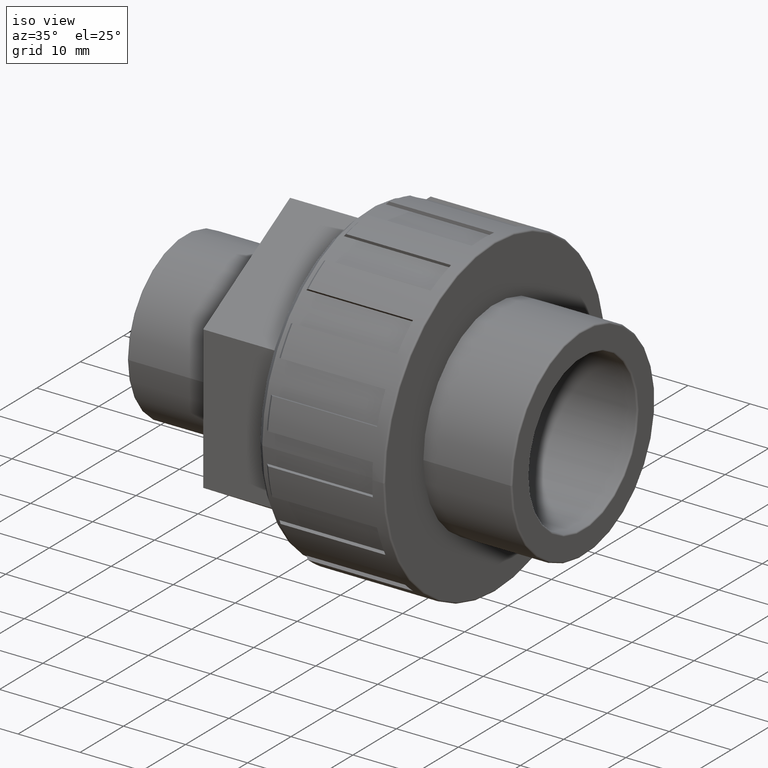
[diagram: clean part render]
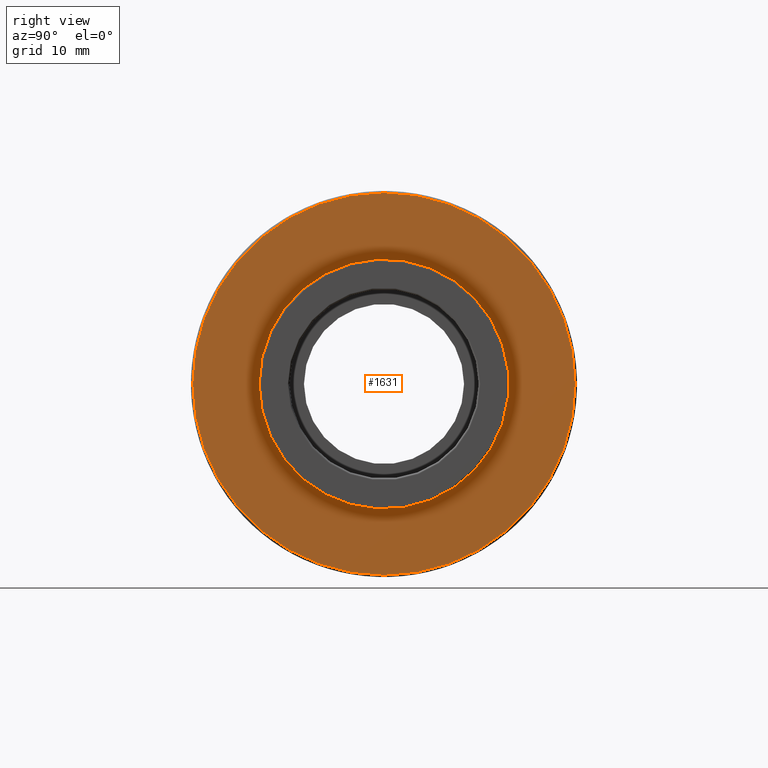
[diagram: tour spotlight — one face highlighted and labeled with its STEP entity id]
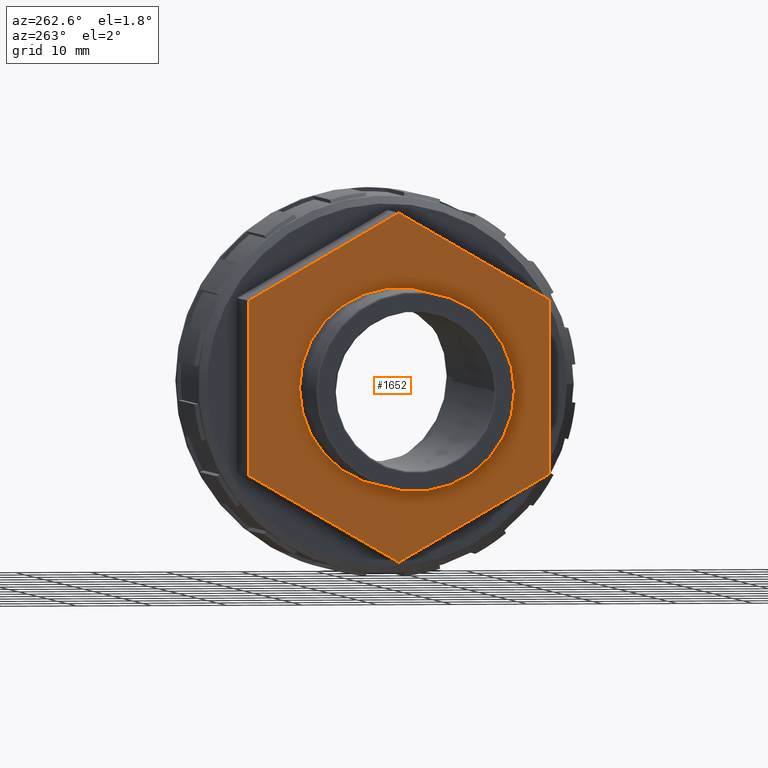
[diagram: tour spotlight — one face highlighted and labeled with its STEP entity id]
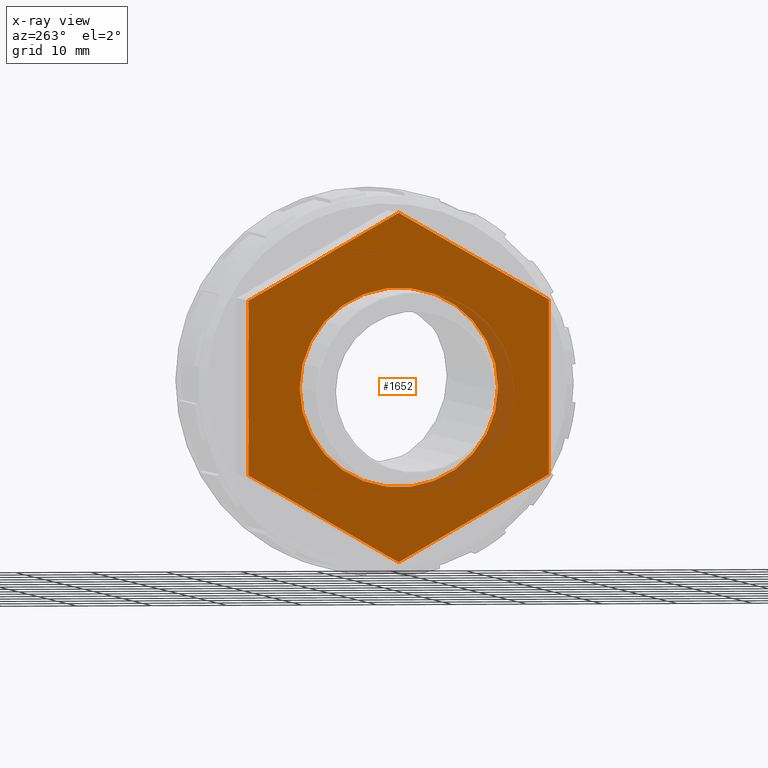
[diagram: x-ray of the same camera — body ghosted, this tour face saturated]
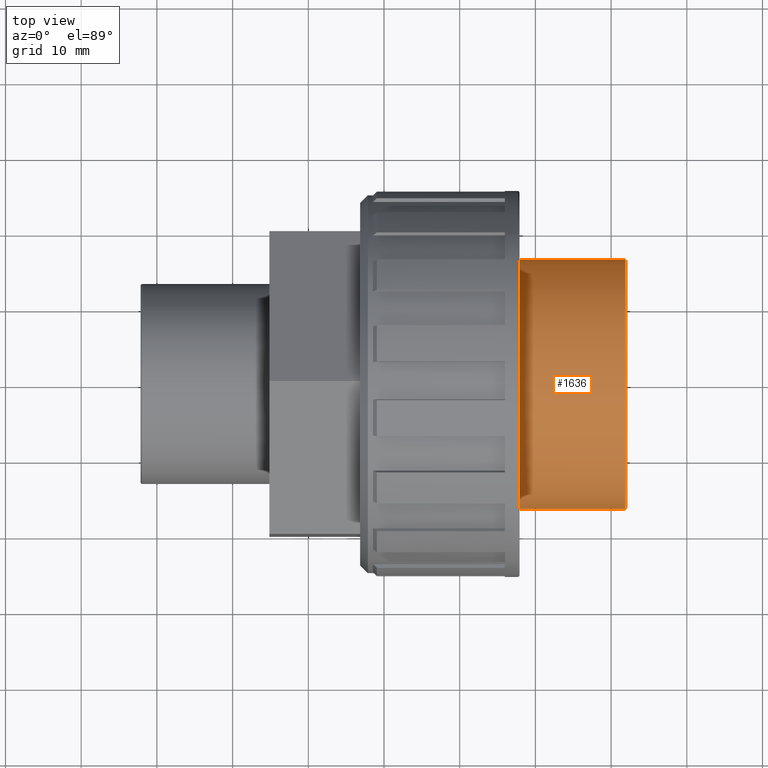
[diagram: tour spotlight — one face highlighted and labeled with its STEP entity id]
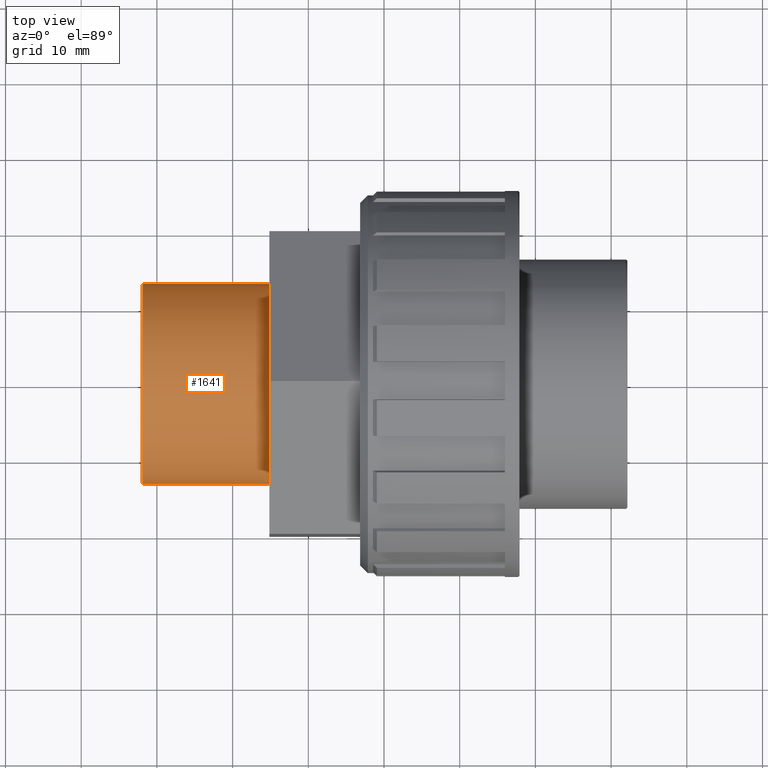
[diagram: tour spotlight — one face highlighted and labeled with its STEP entity id]
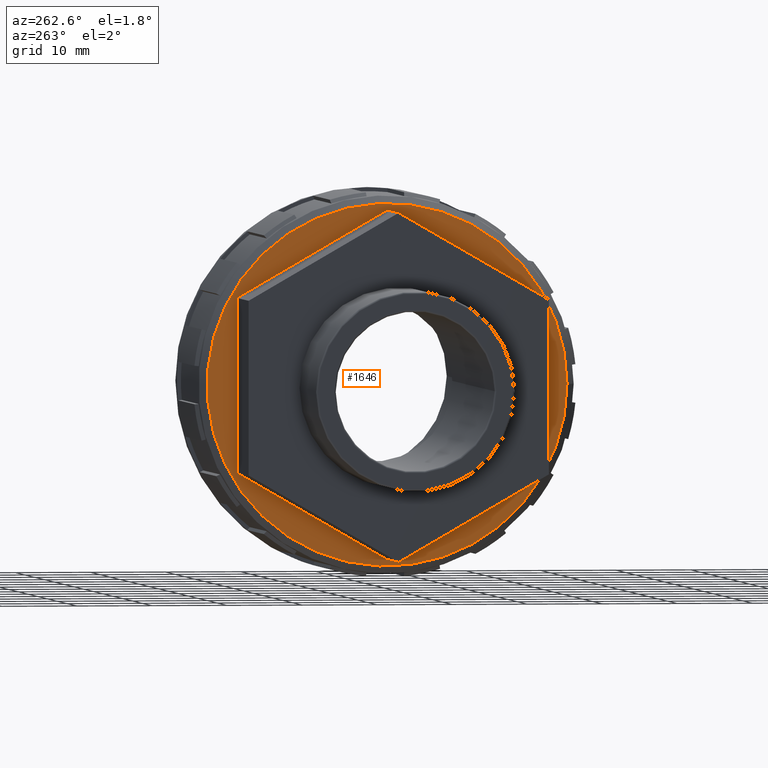
[diagram: tour spotlight — one face highlighted and labeled with its STEP entity id]
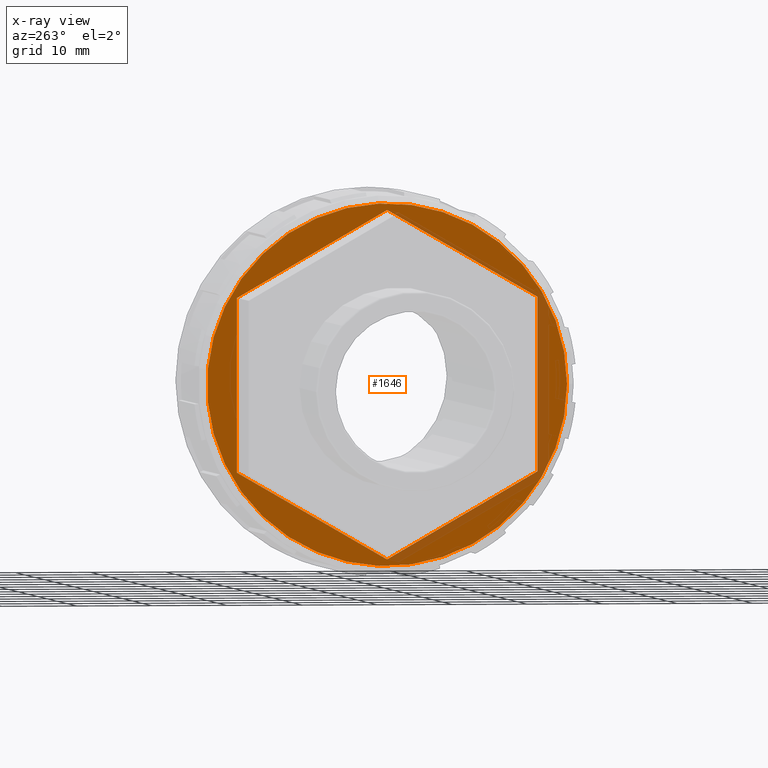
[diagram: x-ray of the same camera — body ghosted, this tour face saturated]
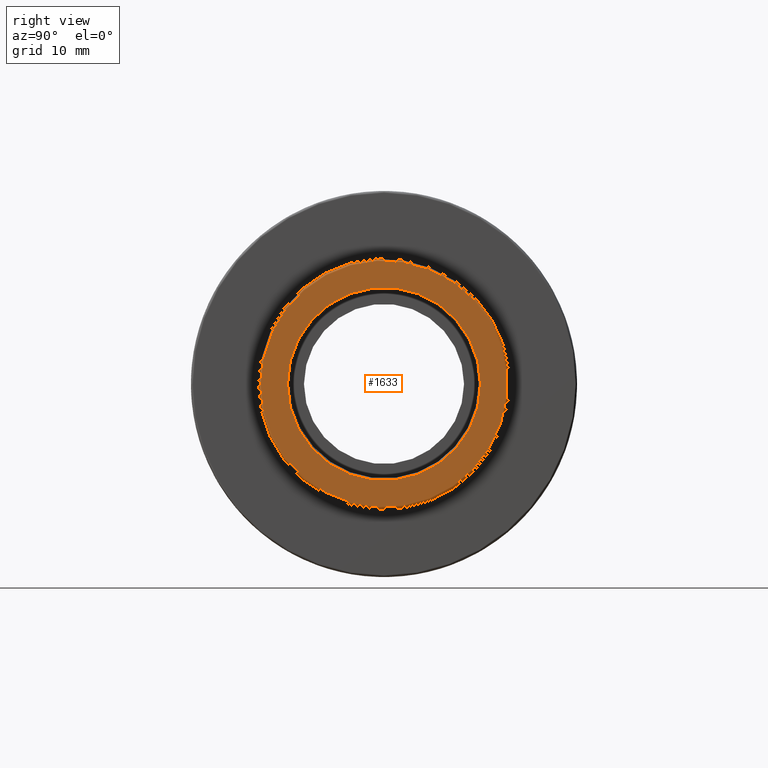
[diagram: tour spotlight — one face highlighted and labeled with its STEP entity id]
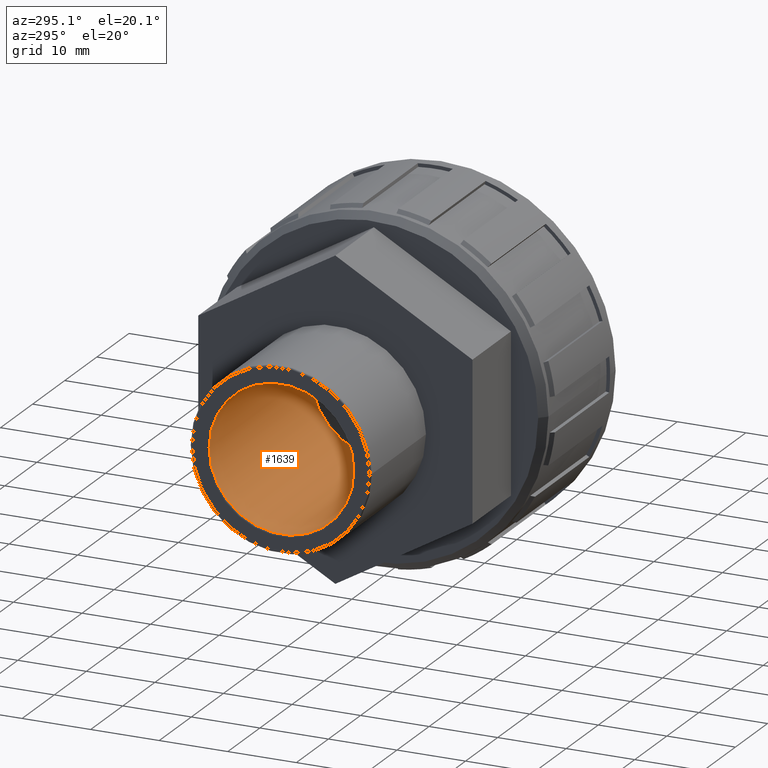
[diagram: tour spotlight — one face highlighted and labeled with its STEP entity id]
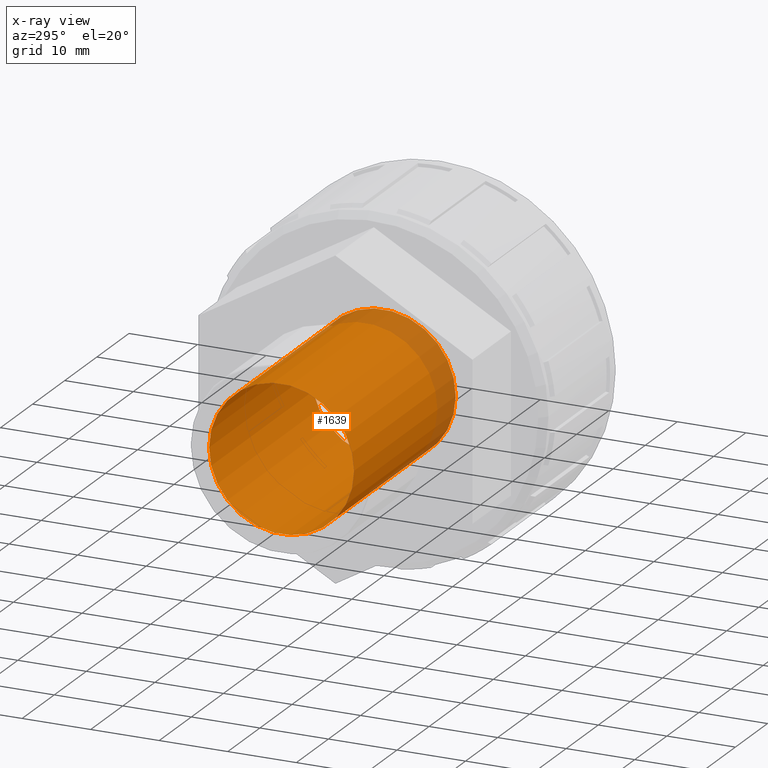
[diagram: x-ray of the same camera — body ghosted, this tour face saturated]
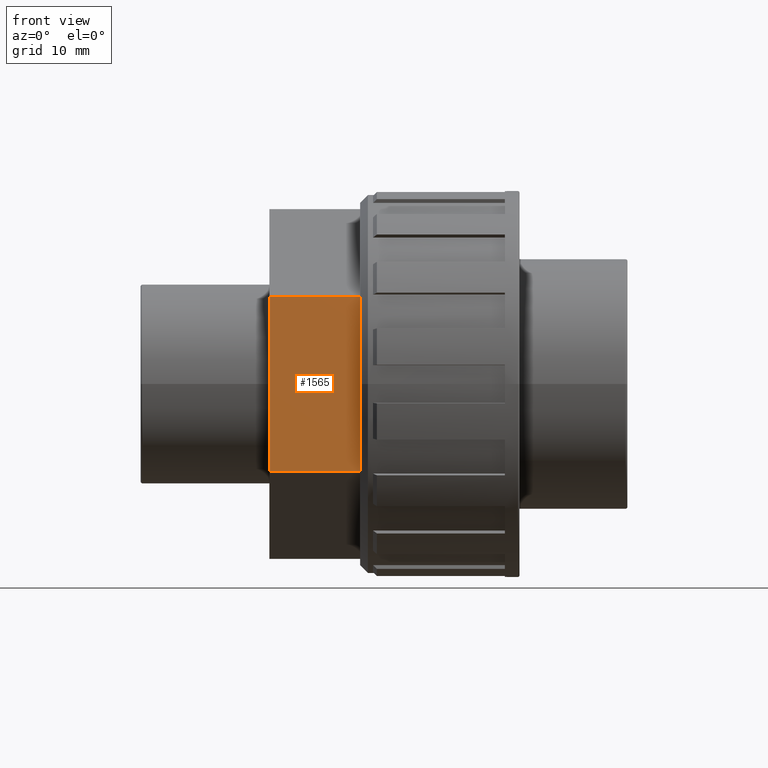
[diagram: tour spotlight — one face highlighted and labeled with its STEP entity id]
A machine part: a face-by-face anatomy tour. The part has 92 B-rep faces; the first image is the clean iso view, then the 8 largest visible faces are spotlighted one at a time (largest first), each with its STEP entity span.

Face 1 — right view, entity #1631. In plain terms, the highlighted planar face has unit normal (1, 0, 0).
Definition (entity closure, byte-faithful):
#39=FACE_BOUND('',#316,.T.);
#131=CIRCLE('',#1789,25.25);
#132=CIRCLE('',#1791,16.5);
#221=FACE_OUTER_BOUND('',#315,.T.);
#315=EDGE_LOOP('',(#1378));
#316=EDGE_LOOP('',(#1379));
#789=VERTEX_POINT('',#2750);
#790=VERTEX_POINT('',#2753);
#1017=EDGE_CURVE('',#789,#789,#131,.T.);
#1018=EDGE_CURVE('',#790,#790,#132,.T.);
#1378=ORIENTED_EDGE('',*,*,#1017,.F.);
#1379=ORIENTED_EDGE('',*,*,#1018,.T.);
#1551=PLANE('',#1790);
#1631=ADVANCED_FACE('',(#221,#39),#1551,.T.);
#1789=AXIS2_PLACEMENT_3D('',#2751,#2245,#2246);
#1790=AXIS2_PLACEMENT_3D('',#2752,#2247,#2248);
#1791=AXIS2_PLACEMENT_3D('',#2754,#2249,#2250);
#2245=DIRECTION('center_axis',(-1.,-4.89858719658941E-16,0.));
#2246=DIRECTION('ref_axis',(-4.89858719658941E-16,1.,6.12323399573677E-17));
#2247=DIRECTION('center_axis',(1.,4.89858719658941E-16,0.));
#2248=DIRECTION('ref_axis',(0.,0.,-1.));
#2249=DIRECTION('center_axis',(-1.,-4.89858719658941E-16,0.));
#2250=DIRECTION('ref_axis',(0.,0.,1.));
#2750=CARTESIAN_POINT('',(17.9,-25.25,1.54611658392353E-15));
#2751=CARTESIAN_POINT('Origin',(17.9,1.46743302707831E-14,0.));
#2752=CARTESIAN_POINT('Origin',(17.9,-25.5,0.));
#2753=CARTESIAN_POINT('',(17.9,-16.5,0.));
#2754=CARTESIAN_POINT('Origin',(17.9,1.46743302707831E-14,0.));

Face 2 — auxiliary view, entity #1652. An x-ray twin of the same camera follows (body ghosted, this face saturated) — the face is partly hidden behind the body. In plain terms, the highlighted planar face has unit normal (-1, -0, 0).
Definition (entity closure, byte-faithful):
#58=FACE_BOUND('',#356,.T.);
#143=CIRCLE('',#1812,13.2205);
#242=FACE_OUTER_BOUND('',#355,.T.);
#355=EDGE_LOOP('',(#1492,#1493,#1494,#1495,#1496,#1497));
#356=EDGE_LOOP('',(#1498));
#359=LINE('',#2339,#505);
#363=LINE('',#2346,#509);
#366=LINE('',#2354,#512);
#370=LINE('',#2361,#516);
#372=LINE('',#2364,#518);
#374=LINE('',#2367,#520);
#505=VECTOR('',#1837,23.0940107675851);
#509=VECTOR('',#1843,23.0940107675851);
#512=VECTOR('',#1848,23.094010767585);
#516=VECTOR('',#1854,23.094010767585);
#518=VECTOR('',#1858,23.094010767585);
#520=VECTOR('',#1862,23.094010767585);
#651=VERTEX_POINT('',#2336);
#652=VERTEX_POINT('',#2338);
#654=VERTEX_POINT('',#2344);
#657=VERTEX_POINT('',#2351);
#658=VERTEX_POINT('',#2353);
#660=VERTEX_POINT('',#2359);
#801=VERTEX_POINT('',#2785);
#811=EDGE_CURVE('',#651,#652,#359,.T.);
#815=EDGE_CURVE('',#654,#651,#363,.T.);
#818=EDGE_CURVE('',#657,#658,#366,.T.);
#822=EDGE_CURVE('',#660,#657,#370,.T.);
#824=EDGE_CURVE('',#652,#660,#372,.T.);
#826=EDGE_CURVE('',#658,#654,#374,.T.);
#1029=EDGE_CURVE('',#801,#801,#143,.T.);
#1492=ORIENTED_EDGE('',*,*,#811,.F.);
#1493=ORIENTED_EDGE('',*,*,#815,.F.);
#1494=ORIENTED_EDGE('',*,*,#826,.F.);
#1495=ORIENTED_EDGE('',*,*,#818,.F.);
#1496=ORIENTED_EDGE('',*,*,#822,.F.);
#1497=ORIENTED_EDGE('',*,*,#824,.F.);
#1498=ORIENTED_EDGE('',*,*,#1029,.F.);
#1560=PLANE('',#1830);
#1652=ADVANCED_FACE('',(#242,#58),#1560,.T.);
#1812=AXIS2_PLACEMENT_3D('',#2786,#2291,#2292);
#1830=AXIS2_PLACEMENT_3D('',#2813,#2329,#2330);
#1837=DIRECTION('',(4.24230095489962E-16,-0.866025403784439,-0.5));
#1843=DIRECTION('',(4.24230095489962E-16,-0.866025403784438,0.5));
#1848=DIRECTION('',(-4.24230095489962E-16,0.866025403784439,0.5));
#1854=DIRECTION('',(-4.24230095489962E-16,0.866025403784439,-0.5));
#1858=DIRECTION('',(9.4198003950377E-32,-1.92296268638356E-16,-1.));
#1862=DIRECTION('',(-1.88396007900754E-31,3.84592537276713E-16,1.));
#2291=DIRECTION('center_axis',(-1.,-4.89858719658941E-16,0.));
#2292=DIRECTION('ref_axis',(0.,0.,1.));
#2329=DIRECTION('center_axis',(-1.,-4.89858719658941E-16,0.));
#2330=DIRECTION('ref_axis',(0.,0.,1.));
#2336=CARTESIAN_POINT('',(-15.15,-6.14276885302824E-14,23.0940107675851));
#2338=CARTESIAN_POINT('',(-15.15,-20.0000000000001,11.5470053837925));
#2339=CARTESIAN_POINT('',(-15.15,-6.14276885302824E-14,23.0940107675851));
#2344=CARTESIAN_POINT('',(-15.15,20.,11.5470053837925));
#2346=CARTESIAN_POINT('',(-15.15,20.,11.5470053837925));
#2351=CARTESIAN_POINT('',(-15.15,-6.80998962816936E-14,-23.094010767585));
#2353=CARTESIAN_POINT('',(-15.15,19.9999999999999,-11.5470053837925));
#2354=CARTESIAN_POINT('',(-15.15,-6.80998962816936E-14,-23.094010767585));
#2359=CARTESIAN_POINT('',(-15.15,-20.0000000000001,-11.5470053837925));
#2361=CARTESIAN_POINT('',(-15.15,-20.0000000000001,-11.5470053837925));
#2364=CARTESIAN_POINT('',(-15.15,-20.0000000000001,11.5470053837925));
#2367=CARTESIAN_POINT('',(-15.15,19.9999999999999,-11.5470053837925));
#2785=CARTESIAN_POINT('',(-15.15,-13.2205,0.));
#2786=CARTESIAN_POINT('Origin',(-15.15,-1.51550041394485E-15,0.));
#2813=CARTESIAN_POINT('Origin',(-15.15,-13.2205,0.));

Face 3 — top view, entity #1636. In plain terms, the highlighted cylindrical surface (bore or boss wall) has radius 16.5 mm, axis along (-1, -0, 0).
Definition (entity closure, byte-faithful):
#44=FACE_BOUND('',#326,.T.);
#61=CYLINDRICAL_SURFACE('',#1801,16.5);
#132=CIRCLE('',#1791,16.5);
#137=CIRCLE('',#1800,16.5);
#226=FACE_OUTER_BOUND('',#325,.T.);
#325=EDGE_LOOP('',(#1388));
#326=EDGE_LOOP('',(#1389));
#790=VERTEX_POINT('',#2753);
#795=VERTEX_POINT('',#2767);
#1018=EDGE_CURVE('',#790,#790,#132,.T.);
#1023=EDGE_CURVE('',#795,#795,#137,.T.);
#1388=ORIENTED_EDGE('',*,*,#1018,.F.);
#1389=ORIENTED_EDGE('',*,*,#1023,.F.);
#1636=ADVANCED_FACE('',(#226,#44),#61,.T.);
#1791=AXIS2_PLACEMENT_3D('',#2754,#2249,#2250);
#1800=AXIS2_PLACEMENT_3D('',#2768,#2267,#2268);
#1801=AXIS2_PLACEMENT_3D('',#2769,#2269,#2270);
#2249=DIRECTION('center_axis',(-1.,-4.89858719658941E-16,0.));
#2250=DIRECTION('ref_axis',(0.,0.,1.));
#2267=DIRECTION('center_axis',(1.,4.89858719658941E-16,0.));
#2268=DIRECTION('ref_axis',(-4.89927963518297E-16,1.,6.12323399573677E-17));
#2269=DIRECTION('center_axis',(-1.,-4.89858719658941E-16,0.));
#2270=DIRECTION('ref_axis',(5.03864312828633E-16,-1.,0.));
#2753=CARTESIAN_POINT('',(17.9,-16.5,0.));
#2754=CARTESIAN_POINT('Origin',(17.9,1.46743302707831E-14,0.));
#2767=CARTESIAN_POINT('',(31.9,-16.5,-3.0310008278897E-15));
#2768=CARTESIAN_POINT('Origin',(31.9,2.15323523460083E-14,0.));
#2769=CARTESIAN_POINT('Origin',(25.025,1.81645736483531E-14,0.));

Face 4 — top view, entity #1641. In plain terms, the highlighted cylindrical surface (bore or boss wall) has radius 13.2205 mm, axis along (-1, -0, 0).
Definition (entity closure, byte-faithful):
#49=FACE_BOUND('',#336,.T.);
#63=CYLINDRICAL_SURFACE('',#1811,13.2205);
#142=CIRCLE('',#1810,13.2205);
#143=CIRCLE('',#1812,13.2205);
#231=FACE_OUTER_BOUND('',#335,.T.);
#335=EDGE_LOOP('',(#1398));
#336=EDGE_LOOP('',(#1399));
#800=VERTEX_POINT('',#2782);
#801=VERTEX_POINT('',#2785);
#1028=EDGE_CURVE('',#800,#800,#142,.T.);
#1029=EDGE_CURVE('',#801,#801,#143,.T.);
#1398=ORIENTED_EDGE('',*,*,#1029,.T.);
#1399=ORIENTED_EDGE('',*,*,#1028,.F.);
#1641=ADVANCED_FACE('',(#231,#49),#63,.T.);
#1810=AXIS2_PLACEMENT_3D('',#2783,#2287,#2288);
#1811=AXIS2_PLACEMENT_3D('',#2784,#2289,#2290);
#1812=AXIS2_PLACEMENT_3D('',#2786,#2291,#2292);
#2287=DIRECTION('center_axis',(-1.,-4.89858719658941E-16,0.));
#2288=DIRECTION('ref_axis',(-4.90742846348721E-16,1.,6.12323399573676E-17));
#2289=DIRECTION('center_axis',(-1.,-4.89858719658941E-16,0.));
#2290=DIRECTION('ref_axis',(5.03864312828633E-16,-1.,0.));
#2291=DIRECTION('center_axis',(-1.,-4.89858719658941E-16,0.));
#2292=DIRECTION('ref_axis',(0.,0.,1.));
#2782=CARTESIAN_POINT('',(-31.9,-13.2205,8.09522150406379E-16));
#2783=CARTESIAN_POINT('Origin',(-31.9,-9.72063396823211E-15,0.));
#2784=CARTESIAN_POINT('Origin',(-23.65,-5.67929953104584E-15,0.));
#2785=CARTESIAN_POINT('',(-15.15,-13.2205,0.));
#2786=CARTESIAN_POINT('Origin',(-15.15,-1.51550041394485E-15,0.));

Face 5 — auxiliary view, entity #1646. An x-ray twin of the same camera follows (body ghosted, this face saturated) — the face is partly hidden behind the body. In plain terms, the highlighted planar face has unit normal (-1, -0, 0).
Definition (entity closure, byte-faithful):
#52=FACE_BOUND('',#344,.T.);
#146=CIRCLE('',#1818,23.97);
#236=FACE_OUTER_BOUND('',#343,.T.);
#343=EDGE_LOOP('',(#1475));
#344=EDGE_LOOP('',(#1476,#1477,#1478,#1479,#1480,#1481));
#357=LINE('',#2335,#503);
#361=LINE('',#2343,#507);
#364=LINE('',#2350,#510);
#368=LINE('',#2358,#514);
#371=LINE('',#2363,#517);
#373=LINE('',#2366,#519);
#503=VECTOR('',#1835,23.0940107675851);
#507=VECTOR('',#1841,23.0940107675851);
#510=VECTOR('',#1846,23.094010767585);
#514=VECTOR('',#1852,23.094010767585);
#517=VECTOR('',#1857,23.094010767585);
#519=VECTOR('',#1861,23.094010767585);
#649=VERTEX_POINT('',#2333);
#650=VERTEX_POINT('',#2334);
#653=VERTEX_POINT('',#2342);
#655=VERTEX_POINT('',#2348);
#656=VERTEX_POINT('',#2349);
#659=VERTEX_POINT('',#2357);
#804=VERTEX_POINT('',#2796);
#809=EDGE_CURVE('',#649,#650,#357,.T.);
#813=EDGE_CURVE('',#653,#649,#361,.T.);
#816=EDGE_CURVE('',#655,#656,#364,.T.);
#820=EDGE_CURVE('',#659,#655,#368,.T.);
#823=EDGE_CURVE('',#650,#659,#371,.T.);
#825=EDGE_CURVE('',#656,#653,#373,.T.);
#1034=EDGE_CURVE('',#804,#804,#146,.T.);
#1475=ORIENTED_EDGE('',*,*,#1034,.F.);
#1476=ORIENTED_EDGE('',*,*,#813,.T.);
#1477=ORIENTED_EDGE('',*,*,#809,.T.);
#1478=ORIENTED_EDGE('',*,*,#823,.T.);
#1479=ORIENTED_EDGE('',*,*,#820,.T.);
#1480=ORIENTED_EDGE('',*,*,#816,.T.);
#1481=ORIENTED_EDGE('',*,*,#825,.T.);
#1556=PLANE('',#1820);
#1646=ADVANCED_FACE('',(#236,#52),#1556,.T.);
#1818=AXIS2_PLACEMENT_3D('',#2797,#2305,#2306);
#1820=AXIS2_PLACEMENT_3D('',#2799,#2309,#2310);
#1835=DIRECTION('',(4.24230095489962E-16,-0.866025403784439,-0.5));
#1841=DIRECTION('',(4.24230095489962E-16,-0.866025403784438,0.5));
#1846=DIRECTION('',(-4.24230095489962E-16,0.866025403784439,0.5));
#1852=DIRECTION('',(-4.24230095489962E-16,0.866025403784439,-0.5));
#1857=DIRECTION('',(9.4198003950377E-32,-1.92296268638356E-16,-1.));
#1861=DIRECTION('',(-1.88396007900754E-31,3.84592537276713E-16,1.));
#2305=DIRECTION('center_axis',(1.,4.89858719658941E-16,0.));
#2306=DIRECTION('ref_axis',(-4.89858719658941E-16,1.,0.));
#2309=DIRECTION('center_axis',(-1.,-4.89858719658941E-16,0.));
#2310=DIRECTION('ref_axis',(0.,0.,1.));
#2333=CARTESIAN_POINT('',(-3.15,-5.55064990656149E-14,23.0940107675851));
#2334=CARTESIAN_POINT('',(-3.15,-20.0000000000001,11.5470053837925));
#2335=CARTESIAN_POINT('',(-3.15,-12.5,15.8771324027147));
#2342=CARTESIAN_POINT('',(-3.15000000000001,20.,11.5470053837925));
#2343=CARTESIAN_POINT('',(-3.15000000000001,7.49999999999998,18.7638837486628));
#2348=CARTESIAN_POINT('',(-3.15,-6.21787068170261E-14,-23.094010767585));
#2349=CARTESIAN_POINT('',(-3.15000000000001,20.,-11.5470053837925));
#2350=CARTESIAN_POINT('',(-3.15,-2.50000000000004,-24.5373864405591));
#2357=CARTESIAN_POINT('',(-3.15,-20.0000000000001,-11.5470053837925));
#2358=CARTESIAN_POINT('',(-3.14999999999999,-22.5,-10.1036297108185));
#2363=CARTESIAN_POINT('',(-3.15,-20.0000000000001,5.77350269189627));
#2366=CARTESIAN_POINT('',(-3.15000000000002,20.,-7.69185074553424E-15));
#2796=CARTESIAN_POINT('',(-3.14999999999999,-23.97,-2.93547837755621E-15));
#2797=CARTESIAN_POINT('Origin',(-3.15,4.36280422196245E-15,0.));
#2799=CARTESIAN_POINT('Origin',(-3.15,-20.,0.));

Face 6 — right view, entity #1633. In plain terms, the highlighted planar face has unit normal (1, 0, 0).
Definition (entity closure, byte-faithful):
#41=FACE_BOUND('',#320,.T.);
#134=CIRCLE('',#1794,12.75);
#135=CIRCLE('',#1796,16.25);
#223=FACE_OUTER_BOUND('',#319,.T.);
#319=EDGE_LOOP('',(#1382));
#320=EDGE_LOOP('',(#1383));
#792=VERTEX_POINT('',#2758);
#793=VERTEX_POINT('',#2761);
#1020=EDGE_CURVE('',#792,#792,#134,.T.);
#1021=EDGE_CURVE('',#793,#793,#135,.T.);
#1382=ORIENTED_EDGE('',*,*,#1021,.F.);
#1383=ORIENTED_EDGE('',*,*,#1020,.F.);
#1552=PLANE('',#1795);
#1633=ADVANCED_FACE('',(#223,#41),#1552,.T.);
#1794=AXIS2_PLACEMENT_3D('',#2759,#2255,#2256);
#1795=AXIS2_PLACEMENT_3D('',#2760,#2257,#2258);
#1796=AXIS2_PLACEMENT_3D('',#2762,#2259,#2260);
#2255=DIRECTION('center_axis',(1.,4.89858719658941E-16,0.));
#2256=DIRECTION('ref_axis',(-4.89858719658941E-16,1.,6.12323399573677E-17));
#2257=DIRECTION('center_axis',(1.,4.89858719658941E-16,0.));
#2258=DIRECTION('ref_axis',(0.,0.,-1.));
#2259=DIRECTION('center_axis',(-1.,-4.89858719658941E-16,0.));
#2260=DIRECTION('ref_axis',(-4.89858719658941E-16,1.,6.12323399573676E-17));
#2758=CARTESIAN_POINT('',(32.15,-12.75,-2.34213700336932E-15));
#2759=CARTESIAN_POINT('Origin',(32.15,2.16548170259231E-14,0.));
#2760=CARTESIAN_POINT('Origin',(32.15,-16.5,0.));
#2761=CARTESIAN_POINT('',(32.15,-16.25,9.95025524307225E-16));
#2762=CARTESIAN_POINT('Origin',(32.15,2.16548170259231E-14,0.));

Face 7 — auxiliary view, entity #1639. An x-ray twin of the same camera follows (body ghosted, this face saturated) — the face is partly hidden behind the body. In plain terms, the highlighted cylindrical surface (bore or boss wall) has radius 10.5764 mm, axis along (-1, -0, 0).
Definition (entity closure, byte-faithful):
#47=FACE_BOUND('',#332,.T.);
#62=CYLINDRICAL_SURFACE('',#1807,10.5764);
#139=CIRCLE('',#1804,10.5764);
#141=CIRCLE('',#1808,10.5764);
#229=FACE_OUTER_BOUND('',#331,.T.);
#331=EDGE_LOOP('',(#1394));
#332=EDGE_LOOP('',(#1395));
#797=VERTEX_POINT('',#2773);
#799=VERTEX_POINT('',#2779);
#1025=EDGE_CURVE('',#797,#797,#139,.T.);
#1027=EDGE_CURVE('',#799,#799,#141,.T.);
#1394=ORIENTED_EDGE('',*,*,#1027,.F.);
#1395=ORIENTED_EDGE('',*,*,#1025,.F.);
#1639=ADVANCED_FACE('',(#229,#47),#62,.F.);
#1804=AXIS2_PLACEMENT_3D('',#2774,#2275,#2276);
#1807=AXIS2_PLACEMENT_3D('',#2778,#2281,#2282);
#1808=AXIS2_PLACEMENT_3D('',#2780,#2283,#2284);
#2275=DIRECTION('center_axis',(1.,4.89858719658941E-16,0.));
#2276=DIRECTION('ref_axis',(-4.88774626376734E-16,1.,6.12323399573677E-17));
#2281=DIRECTION('center_axis',(-1.,-4.89858719658941E-16,0.));
#2282=DIRECTION('ref_axis',(5.03864312828633E-16,-1.,0.));
#2283=DIRECTION('center_axis',(-1.,-4.89858719658941E-16,0.));
#2284=DIRECTION('ref_axis',(0.,0.,1.));
#2773=CARTESIAN_POINT('',(-31.9,-10.5764,-1.94285316097531E-15));
#2774=CARTESIAN_POINT('Origin',(-31.9,-9.7206339682321E-15,0.));
#2778=CARTESIAN_POINT('Origin',(-16.2,-2.02985206958673E-15,0.));
#2779=CARTESIAN_POINT('',(-0.24999999999999,-10.5764,0.));
#2780=CARTESIAN_POINT('Origin',(-0.249999999999995,5.78339450897338E-15,
0.));

Face 8 — front view, entity #1565. In plain terms, the highlighted planar face has unit normal (0, -1, 0).
Definition (entity closure, byte-faithful):
#155=FACE_OUTER_BOUND('',#247,.T.);
#247=EDGE_LOOP('',(#1055,#1056,#1057,#1058));
#360=LINE('',#2340,#506);
#369=LINE('',#2360,#515);
#371=LINE('',#2363,#517);
#372=LINE('',#2364,#518);
#506=VECTOR('',#1838,12.);
#515=VECTOR('',#1853,12.);
#517=VECTOR('',#1857,23.094010767585);
#518=VECTOR('',#1858,23.094010767585);
#650=VERTEX_POINT('',#2334);
#652=VERTEX_POINT('',#2338);
#659=VERTEX_POINT('',#2357);
#660=VERTEX_POINT('',#2359);
#812=EDGE_CURVE('',#652,#650,#360,.T.);
#821=EDGE_CURVE('',#660,#659,#369,.T.);
#823=EDGE_CURVE('',#650,#659,#371,.T.);
#824=EDGE_CURVE('',#652,#660,#372,.T.);
#1055=ORIENTED_EDGE('',*,*,#823,.F.);
#1056=ORIENTED_EDGE('',*,*,#812,.F.);
#1057=ORIENTED_EDGE('',*,*,#824,.T.);
#1058=ORIENTED_EDGE('',*,*,#821,.T.);
#1503=PLANE('',#1659);
#1565=ADVANCED_FACE('',(#155),#1503,.T.);
#1659=AXIS2_PLACEMENT_3D('',#2362,#1855,#1856);
#1838=DIRECTION('',(1.,4.93432455388953E-16,0.));
#1853=DIRECTION('',(1.,4.93432455388953E-16,0.));
#1855=DIRECTION('center_axis',(4.93432455388953E-16,-1.,1.92296268638356E-16));
#1856=DIRECTION('ref_axis',(0.,-3.5527136788005E-16,-1.));
#1857=DIRECTION('',(9.4198003950377E-32,-1.92296268638356E-16,-1.));
#1858=DIRECTION('',(9.4198003950377E-32,-1.92296268638356E-16,-1.));
#2334=CARTESIAN_POINT('',(-3.15,-20.0000000000001,11.5470053837925));
#2338=CARTESIAN_POINT('',(-15.15,-20.0000000000001,11.5470053837925));
#2340=CARTESIAN_POINT('',(-15.15,-20.0000000000001,11.5470053837925));
#2357=CARTESIAN_POINT('',(-3.15,-20.0000000000001,-11.5470053837925));
#2359=CARTESIAN_POINT('',(-15.15,-20.0000000000001,-11.5470053837925));
#2360=CARTESIAN_POINT('',(-15.15,-20.0000000000001,-11.5470053837925));
#2362=CARTESIAN_POINT('Origin',(-15.15,-20.0000000000001,11.5470053837925));
#2363=CARTESIAN_POINT('',(-3.15,-20.0000000000001,5.77350269189627));
#2364=CARTESIAN_POINT('',(-15.15,-20.0000000000001,11.5470053837925));